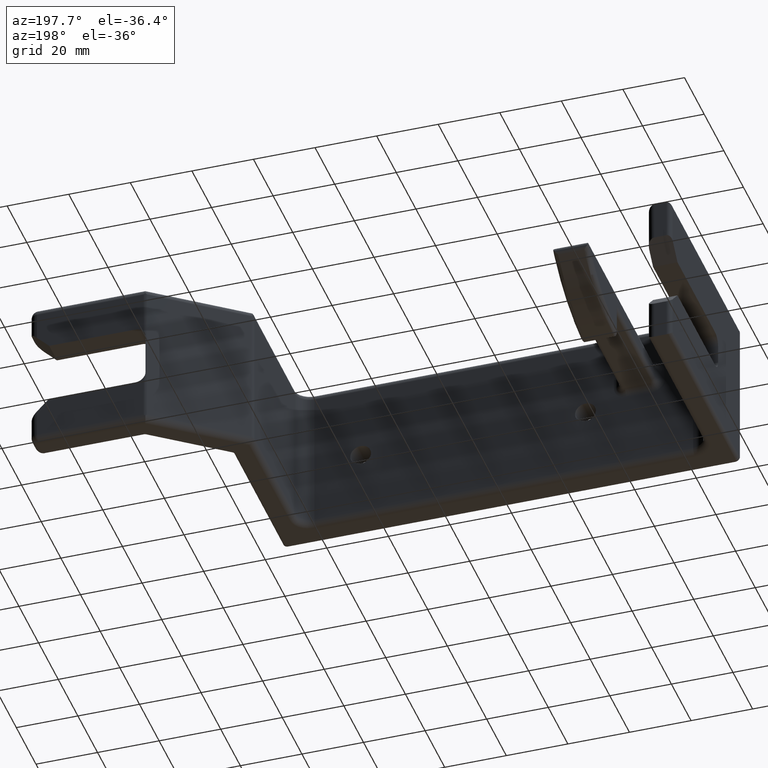
[diagram: clean part render]
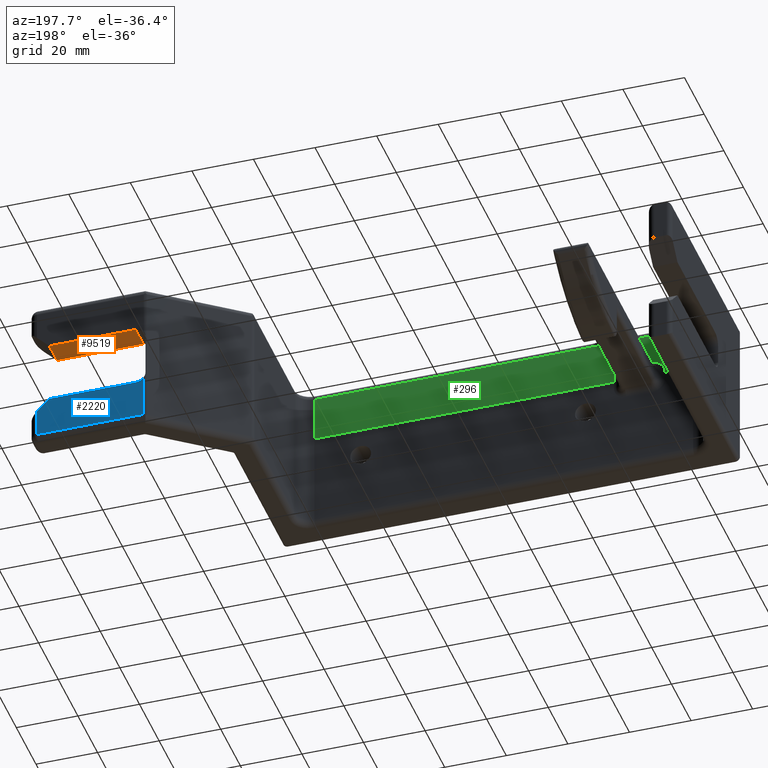
[diagram: same view with three faces highlighted in distinct colors, each labeled with its STEP entity id]
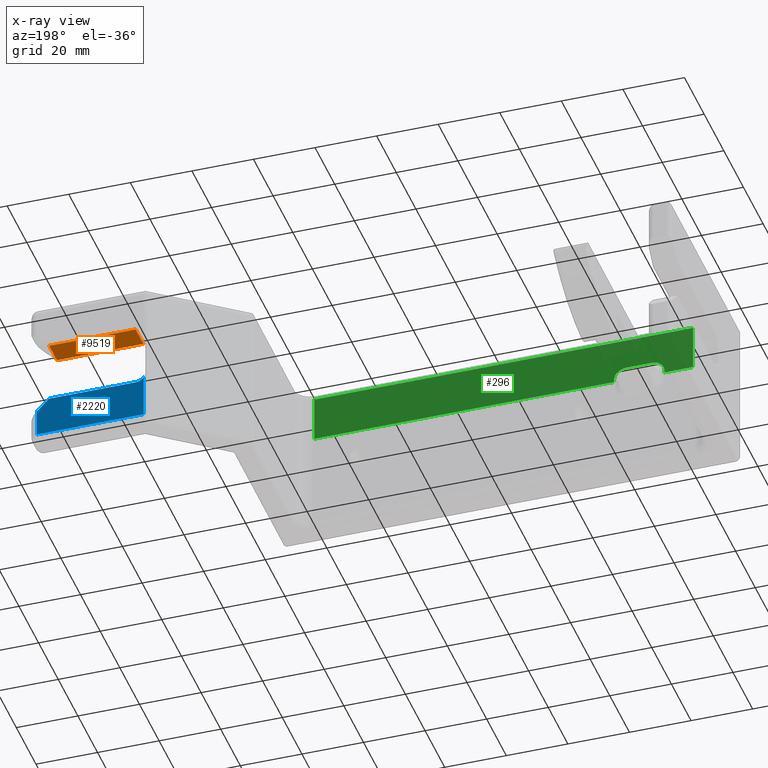
[diagram: x-ray of the same camera — body ghosted, the three highlighted faces saturated]
A machine part, auxiliary view with three faces highlighted in distinct colors.
The next image is the same camera in x-ray (body ghosted, the three faces saturated) — at least one of them is partly hidden behind the body in this view.
Their STEP definitions:

[orange] entity #9519 — the highlighted planar face has unit normal (0, 0, 1).
#2 = EDGE_LOOP ( 'NONE', ( #911, #9292, #3724, #5590, #2513 ) ) ;
#188 = VECTOR ( 'NONE', #8344, 39.37007874015748100 ) ;
#192 = CARTESIAN_POINT ( 'NONE',  ( 4.955000000000000100, 2.687500000000000400, 0.3999999999999999700 ) ) ;
#325 = CARTESIAN_POINT ( 'NONE',  ( 3.850955183131433900, 2.625000000000000000, 0.4000000000000000800 ) ) ;
#367 = EDGE_CURVE ( 'NONE', #1565, #2681, #9721, .T. ) ;
#395 = DIRECTION ( 'NONE',  ( -0.0000000000000000000, 1.000000000000000000, -0.0000000000000000000 ) ) ;
#594 = VECTOR ( 'NONE', #395, 39.37007874015748100 ) ;
#911 = ORIENTED_EDGE ( 'NONE', *, *, #1427, .T. ) ;
#1026 = PLANE ( 'NONE',  #2176 ) ;
#1124 = DIRECTION ( 'NONE',  ( 1.000000000000000000, 0.0000000000000000000, 0.0000000000000000000 ) ) ;
#1323 = LINE ( 'NONE', #8698, #3157 ) ;
#1427 = EDGE_CURVE ( 'NONE', #1899, #3421, #5433, .T. ) ;
#1565 = VERTEX_POINT ( 'NONE', #7103 ) ;
#1899 = VERTEX_POINT ( 'NONE', #8424 ) ;
#2117 = CARTESIAN_POINT ( 'NONE',  ( 4.955000000000000100, 2.540000000000000000, 0.4000000000000000200 ) ) ;
#2176 = AXIS2_PLACEMENT_3D ( 'NONE', #8703, #9582, #4942 ) ;
#2187 = LINE ( 'NONE', #5073, #594 ) ;
#2513 = ORIENTED_EDGE ( 'NONE', *, *, #4479, .T. ) ;
#2681 = VERTEX_POINT ( 'NONE', #3457 ) ;
#3157 = VECTOR ( 'NONE', #7125, 39.37007874015748100 ) ;
#3421 = VERTEX_POINT ( 'NONE', #5189 ) ;
#3457 = CARTESIAN_POINT ( 'NONE',  ( 3.850224084342833900, 2.687495723810204400, 0.4000000000000000800 ) ) ;
#3540 = EDGE_CURVE ( 'NONE', #1565, #7768, #1323, .T. ) ;
#3724 = ORIENTED_EDGE ( 'NONE', *, *, #3540, .F. ) ;
#4479 = EDGE_CURVE ( 'NONE', #2681, #1899, #2187, .T. ) ;
#4942 = DIRECTION ( 'NONE',  ( 1.000000000000000000, 0.0000000000000000000, -5.041143635069558200E-017 ) ) ;
#5073 = CARTESIAN_POINT ( 'NONE',  ( 3.850224084342833900, 2.540000000000000000, 0.4000000000000000800 ) ) ;
#5189 = CARTESIAN_POINT ( 'NONE',  ( 4.955000000000000100, 3.000000000000000400, 0.4000000000000000200 ) ) ;
#5433 = LINE ( 'NONE', #9846, #9309 ) ;
#5590 = ORIENTED_EDGE ( 'NONE', *, *, #367, .T. ) ;
#5771 = DIRECTION ( 'NONE',  ( 5.041143635069557600E-017, 0.0000000000000000000, 1.000000000000000000 ) ) ;
#5975 = DIRECTION ( 'NONE',  ( 1.000000000000000000, -0.0000000000000000000, -5.041143635069558200E-017 ) ) ;
#7103 = CARTESIAN_POINT ( 'NONE',  ( 3.850955183131433900, 2.687500000000000400, 0.4000000000000000800 ) ) ;
#7125 = DIRECTION ( 'NONE',  ( 1.000000000000000000, 0.0000000000000000000, -5.041143635069558200E-017 ) ) ;
#7768 = VERTEX_POINT ( 'NONE', #192 ) ;
#8042 = EDGE_CURVE ( 'NONE', #3421, #7768, #8491, .T. ) ;
#8344 = DIRECTION ( 'NONE',  ( 0.0000000000000000000, -1.000000000000000000, 0.0000000000000000000 ) ) ;
#8424 = CARTESIAN_POINT ( 'NONE',  ( 3.850224084342833900, 3.000000000000000400, 0.4000000000000000800 ) ) ;
#8485 = AXIS2_PLACEMENT_3D ( 'NONE', #325, #5771, #1124 ) ;
#8491 = LINE ( 'NONE', #2117, #188 ) ;
#8628 = FACE_OUTER_BOUND ( 'NONE', #2, .T. ) ;
#8698 = CARTESIAN_POINT ( 'NONE',  ( 3.830000000000001000, 2.687500000000000400, 0.4000000000000000800 ) ) ;
#8703 = CARTESIAN_POINT ( 'NONE',  ( 5.205000000000001000, 2.540000000000000000, 0.4000000000000000200 ) ) ;
#9292 = ORIENTED_EDGE ( 'NONE', *, *, #8042, .T. ) ;
#9309 = VECTOR ( 'NONE', #5975, 39.37007874015748100 ) ;
#9519 = ADVANCED_FACE ( 'NONE', ( #8628 ), #1026, .F. ) ;
#9582 = DIRECTION ( 'NONE',  ( 5.041143635069558200E-017, 0.0000000000000000000, 1.000000000000000000 ) ) ;
#9721 = CIRCLE ( 'NONE', #8485, 0.06250000000000022200 ) ;
#9846 = CARTESIAN_POINT ( 'NONE',  ( 5.205000000000001000, 3.000000000000000400, 0.4000000000000000200 ) ) ;

[blue] entity #2220 — the highlighted planar face has unit normal (0, -1, 0).
#164 = LINE ( 'NONE', #6719, #4079 ) ;
#258 = DIRECTION ( 'NONE',  ( -1.000000000000000000, 0.0000000000000000000, -5.041143635069558200E-017 ) ) ;
#279 = CARTESIAN_POINT ( 'NONE',  ( 5.111250000000001000, 3.000000000000000400, -0.9062499999999998900 ) ) ;
#477 = LINE ( 'NONE', #8047, #8510 ) ;
#593 = LINE ( 'NONE', #5703, #6065 ) ;
#1066 = DIRECTION ( 'NONE',  ( 0.7071067811865459100, -0.0000000000000000000, -0.7071067811865491300 ) ) ;
#1555 = CIRCLE ( 'NONE', #7667, 0.1249999999999999200 ) ;
#1621 = LINE ( 'NONE', #6948, #7339 ) ;
#1986 = AXIS2_PLACEMENT_3D ( 'NONE', #5004, #3466, #8903 ) ;
#2220 = ADVANCED_FACE ( 'NONE', ( #6507 ), #8138, .F. ) ;
#2321 = VECTOR ( 'NONE', #9219, 39.37007874015748100 ) ;
#2629 = VERTEX_POINT ( 'NONE', #279 ) ;
#3122 = VERTEX_POINT ( 'NONE', #8595 ) ;
#3321 = CARTESIAN_POINT ( 'NONE',  ( 3.850224084342833900, 3.000000000000000400, -0.2750000000000001900 ) ) ;
#3466 = DIRECTION ( 'NONE',  ( 0.0000000000000000000, -1.000000000000000000, 0.0000000000000000000 ) ) ;
#3597 = CARTESIAN_POINT ( 'NONE',  ( 3.850224084342833900, 3.000000000000000400, -0.4000000000000000800 ) ) ;
#3707 = EDGE_CURVE ( 'NONE', #4564, #3885, #593, .T. ) ;
#3803 = CARTESIAN_POINT ( 'NONE',  ( 5.111250000000001000, 3.000000000000000400, 1.000000000000000000 ) ) ;
#3885 = VERTEX_POINT ( 'NONE', #3597 ) ;
#4079 = VECTOR ( 'NONE', #7512, 39.37007874015748100 ) ;
#4122 = DIRECTION ( 'NONE',  ( 0.0000000000000000000, 0.0000000000000000000, 1.000000000000000000 ) ) ;
#4187 = EDGE_CURVE ( 'NONE', #4564, #7170, #477, .T. ) ;
#4330 = EDGE_CURVE ( 'NONE', #3885, #5538, #1555, .T. ) ;
#4564 = VERTEX_POINT ( 'NONE', #5146 ) ;
#5004 = CARTESIAN_POINT ( 'NONE',  ( 3.725224084342834400, 3.000000000000000400, 1.000000000000000000 ) ) ;
#5146 = CARTESIAN_POINT ( 'NONE',  ( 4.955000000000001800, 3.000000000000000400, -0.4000000000000000200 ) ) ;
#5526 = EDGE_CURVE ( 'NONE', #2629, #3122, #164, .T. ) ;
#5538 = VERTEX_POINT ( 'NONE', #9066 ) ;
#5703 = CARTESIAN_POINT ( 'NONE',  ( 5.205000000000001000, 3.000000000000000400, -0.4000000000000000200 ) ) ;
#5995 = EDGE_CURVE ( 'NONE', #3122, #5538, #1621, .T. ) ;
#6065 = VECTOR ( 'NONE', #258, 39.37007874015748100 ) ;
#6507 = FACE_OUTER_BOUND ( 'NONE', #7324, .T. ) ;
#6719 = CARTESIAN_POINT ( 'NONE',  ( 3.725224084342834400, 3.000000000000000400, -0.9062499999999998900 ) ) ;
#6836 = ORIENTED_EDGE ( 'NONE', *, *, #5526, .T. ) ;
#6948 = CARTESIAN_POINT ( 'NONE',  ( 3.746179267474267300, 3.000000000000000400, 1.000000000000000000 ) ) ;
#7170 = VERTEX_POINT ( 'NONE', #7601 ) ;
#7324 = EDGE_LOOP ( 'NONE', ( #6836, #9532, #7889, #9764, #8811, #9473 ) ) ;
#7339 = VECTOR ( 'NONE', #7751, 39.37007874015748100 ) ;
#7512 = DIRECTION ( 'NONE',  ( -1.000000000000000000, 0.0000000000000000000, 0.0000000000000000000 ) ) ;
#7601 = CARTESIAN_POINT ( 'NONE',  ( 5.111250000000001000, 3.000000000000000400, -0.5562499999999994700 ) ) ;
#7667 = AXIS2_PLACEMENT_3D ( 'NONE', #3321, #8766, #4122 ) ;
#7751 = DIRECTION ( 'NONE',  ( -0.0000000000000000000, -0.0000000000000000000, 1.000000000000000000 ) ) ;
#7889 = ORIENTED_EDGE ( 'NONE', *, *, #4330, .F. ) ;
#8047 = CARTESIAN_POINT ( 'NONE',  ( 4.955000000000001800, 3.000000000000000400, -0.4000000000000000200 ) ) ;
#8138 = PLANE ( 'NONE',  #1986 ) ;
#8276 = LINE ( 'NONE', #3803, #2321 ) ;
#8510 = VECTOR ( 'NONE', #1066, 39.37007874015748100 ) ;
#8595 = CARTESIAN_POINT ( 'NONE',  ( 3.746179267474267300, 3.000000000000000400, -0.9062499999999998900 ) ) ;
#8766 = DIRECTION ( 'NONE',  ( 0.0000000000000000000, 1.000000000000000000, 0.0000000000000000000 ) ) ;
#8811 = ORIENTED_EDGE ( 'NONE', *, *, #4187, .T. ) ;
#8903 = DIRECTION ( 'NONE',  ( 0.0000000000000000000, -0.0000000000000000000, -1.000000000000000000 ) ) ;
#9066 = CARTESIAN_POINT ( 'NONE',  ( 3.746179267474267300, 3.000000000000000400, -0.3442796945921847200 ) ) ;
#9219 = DIRECTION ( 'NONE',  ( 0.0000000000000000000, 0.0000000000000000000, -1.000000000000000000 ) ) ;
#9473 = ORIENTED_EDGE ( 'NONE', *, *, #9992, .T. ) ;
#9532 = ORIENTED_EDGE ( 'NONE', *, *, #5995, .T. ) ;
#9764 = ORIENTED_EDGE ( 'NONE', *, *, #3707, .F. ) ;
#9992 = EDGE_CURVE ( 'NONE', #7170, #2629, #8276, .T. ) ;

[green] entity #296 — the highlighted planar face has unit normal (0, -1, 0).
#71 = ORIENTED_EDGE ( 'NONE', *, *, #5994, .T. ) ;
#135 = CARTESIAN_POINT ( 'NONE',  ( -1.565000000000000200, 0.3125000000000000000, 0.3375000000000000200 ) ) ;
#147 = CARTESIAN_POINT ( 'NONE',  ( 2.419999999999999900, 0.3125000000000000000, 0.9062499999999998900 ) ) ;
#184 = EDGE_CURVE ( 'NONE', #2841, #3946, #7039, .T. ) ;
#296 = ADVANCED_FACE ( 'NONE', ( #6313 ), #1909, .F. ) ;
#603 = LINE ( 'NONE', #6489, #8622 ) ;
#716 = CARTESIAN_POINT ( 'NONE',  ( 2.419999999999999900, 0.3125000000000000000, 0.3125000000000000000 ) ) ;
#766 = EDGE_CURVE ( 'NONE', #3946, #1551, #603, .T. ) ;
#940 = DIRECTION ( 'NONE',  ( 0.0000000000000000000, 0.0000000000000000000, -1.000000000000000000 ) ) ;
#1145 = CARTESIAN_POINT ( 'NONE',  ( -1.408750000000000200, 0.3125000000000000000, 0.3375000000000000200 ) ) ;
#1187 = ORIENTED_EDGE ( 'NONE', *, *, #184, .T. ) ;
#1446 = LINE ( 'NONE', #7814, #7403 ) ;
#1503 = DIRECTION ( 'NONE',  ( -1.000000000000000000, 0.0000000000000000000, 0.0000000000000000000 ) ) ;
#1551 = VERTEX_POINT ( 'NONE', #1674 ) ;
#1576 = CARTESIAN_POINT ( 'NONE',  ( -2.056250000000000400, 0.3125000000000000000, 0.3375000000000000200 ) ) ;
#1674 = CARTESIAN_POINT ( 'NONE',  ( -2.419999999999999900, 0.3125000000000000000, 0.3125000000000000000 ) ) ;
#1909 = PLANE ( 'NONE',  #5479 ) ;
#2034 = DIRECTION ( 'NONE',  ( 0.0000000000000000000, 0.0000000000000000000, -1.000000000000000000 ) ) ;
#2402 = EDGE_CURVE ( 'NONE', #8839, #7503, #5307, .T. ) ;
#2715 = VERTEX_POINT ( 'NONE', #1145 ) ;
#2841 = VERTEX_POINT ( 'NONE', #1576 ) ;
#2858 = CARTESIAN_POINT ( 'NONE',  ( -1.900000000000000100, 0.3125000000000000000, 0.4937500000000000200 ) ) ;
#3089 = CARTESIAN_POINT ( 'NONE',  ( -2.056250000000000400, 0.3125000000000000000, 0.3125000000000000000 ) ) ;
#3104 = ORIENTED_EDGE ( 'NONE', *, *, #766, .T. ) ;
#3402 = DIRECTION ( 'NONE',  ( 1.000000000000000000, -0.0000000000000000000, -0.0000000000000000000 ) ) ;
#3404 = DIRECTION ( 'NONE',  ( -1.000000000000000000, 0.0000000000000000000, 0.0000000000000000000 ) ) ;
#3460 = LINE ( 'NONE', #5387, #6022 ) ;
#3551 = CARTESIAN_POINT ( 'NONE',  ( -1.900000000000000100, 0.3125000000000000000, 0.3375000000000000200 ) ) ;
#3718 = EDGE_CURVE ( 'NONE', #9814, #5389, #9942, .T. ) ;
#3818 = ORIENTED_EDGE ( 'NONE', *, *, #6905, .T. ) ;
#3946 = VERTEX_POINT ( 'NONE', #3089 ) ;
#3968 = CIRCLE ( 'NONE', #8750, 0.1562500000000000000 ) ;
#4090 = EDGE_CURVE ( 'NONE', #1551, #9814, #1446, .T. ) ;
#4103 = DIRECTION ( 'NONE',  ( -1.000000000000000000, 0.0000000000000000000, 0.0000000000000000000 ) ) ;
#4176 = DIRECTION ( 'NONE',  ( -0.0000000000000000000, -0.0000000000000000000, 1.000000000000000000 ) ) ;
#4248 = VECTOR ( 'NONE', #3402, 39.37007874015748100 ) ;
#4281 = CARTESIAN_POINT ( 'NONE',  ( -2.607499999999999900, 0.3125000000000000000, 1.000000000000000000 ) ) ;
#4325 = CARTESIAN_POINT ( 'NONE',  ( -1.565000000000000200, 0.3125000000000000000, 0.4937500000000000200 ) ) ;
#4342 = DIRECTION ( 'NONE',  ( 0.0000000000000000000, 0.0000000000000000000, -1.000000000000000000 ) ) ;
#4490 = VERTEX_POINT ( 'NONE', #9716 ) ;
#4955 = CARTESIAN_POINT ( 'NONE',  ( -1.408750000000000200, 0.3125000000000000000, 1.000000000000000000 ) ) ;
#5051 = DIRECTION ( 'NONE',  ( 0.0000000000000000000, -0.0000000000000000000, -1.000000000000000000 ) ) ;
#5097 = ORIENTED_EDGE ( 'NONE', *, *, #8558, .T. ) ;
#5248 = EDGE_CURVE ( 'NONE', #7503, #2841, #3968, .T. ) ;
#5307 = LINE ( 'NONE', #7981, #8689 ) ;
#5387 = CARTESIAN_POINT ( 'NONE',  ( -2.607499999999999900, 0.3125000000000000000, 0.3125000000000000000 ) ) ;
#5389 = VERTEX_POINT ( 'NONE', #147 ) ;
#5479 = AXIS2_PLACEMENT_3D ( 'NONE', #4281, #9694, #5051 ) ;
#5484 = DIRECTION ( 'NONE',  ( -0.0000000000000000000, -0.0000000000000000000, 1.000000000000000000 ) ) ;
#5589 = DIRECTION ( 'NONE',  ( 0.0000000000000000000, -1.000000000000000000, 0.0000000000000000000 ) ) ;
#5648 = VERTEX_POINT ( 'NONE', #716 ) ;
#5994 = EDGE_CURVE ( 'NONE', #5648, #4490, #3460, .T. ) ;
#6006 = ORIENTED_EDGE ( 'NONE', *, *, #4090, .T. ) ;
#6022 = VECTOR ( 'NONE', #1503, 39.37007874015748100 ) ;
#6120 = EDGE_CURVE ( 'NONE', #2715, #8839, #8457, .T. ) ;
#6313 = FACE_OUTER_BOUND ( 'NONE', #9821, .T. ) ;
#6489 = CARTESIAN_POINT ( 'NONE',  ( -2.607499999999999900, 0.3125000000000000000, 0.3125000000000000000 ) ) ;
#6905 = EDGE_CURVE ( 'NONE', #4490, #2715, #9997, .T. ) ;
#7006 = ORIENTED_EDGE ( 'NONE', *, *, #6120, .T. ) ;
#7039 = LINE ( 'NONE', #8468, #8874 ) ;
#7403 = VECTOR ( 'NONE', #5484, 39.37007874015748100 ) ;
#7503 = VERTEX_POINT ( 'NONE', #2858 ) ;
#7668 = ORIENTED_EDGE ( 'NONE', *, *, #2402, .T. ) ;
#7814 = CARTESIAN_POINT ( 'NONE',  ( -2.419999999999999900, 0.3125000000000000000, 1.000000000000000000 ) ) ;
#7955 = VECTOR ( 'NONE', #4176, 39.37007874015748100 ) ;
#7981 = CARTESIAN_POINT ( 'NONE',  ( -1.900000000000000100, 0.3125000000000000000, 0.4937500000000000200 ) ) ;
#8269 = CARTESIAN_POINT ( 'NONE',  ( 2.419999999999999900, 0.3125000000000000000, -1.000000000000000000 ) ) ;
#8457 = CIRCLE ( 'NONE', #9502, 0.1562500000000000000 ) ;
#8468 = CARTESIAN_POINT ( 'NONE',  ( -2.056250000000000400, 0.3125000000000000000, 0.2124999999999999900 ) ) ;
#8558 = EDGE_CURVE ( 'NONE', #5389, #5648, #9423, .T. ) ;
#8622 = VECTOR ( 'NONE', #3404, 39.37007874015748100 ) ;
#8689 = VECTOR ( 'NONE', #4103, 39.37007874015748100 ) ;
#8750 = AXIS2_PLACEMENT_3D ( 'NONE', #3551, #8977, #4342 ) ;
#8774 = CARTESIAN_POINT ( 'NONE',  ( -2.419999999999999900, 0.3125000000000000000, 0.9062499999999998900 ) ) ;
#8839 = VERTEX_POINT ( 'NONE', #4325 ) ;
#8841 = CARTESIAN_POINT ( 'NONE',  ( 2.419999999999999900, 0.3125000000000000000, 0.9062499999999998900 ) ) ;
#8874 = VECTOR ( 'NONE', #9237, 39.37007874015748100 ) ;
#8977 = DIRECTION ( 'NONE',  ( 0.0000000000000000000, -1.000000000000000000, 0.0000000000000000000 ) ) ;
#9200 = VECTOR ( 'NONE', #2034, 39.37007874015748100 ) ;
#9237 = DIRECTION ( 'NONE',  ( 0.0000000000000000000, 0.0000000000000000000, -1.000000000000000000 ) ) ;
#9386 = ORIENTED_EDGE ( 'NONE', *, *, #5248, .T. ) ;
#9423 = LINE ( 'NONE', #8269, #9200 ) ;
#9502 = AXIS2_PLACEMENT_3D ( 'NONE', #135, #5589, #940 ) ;
#9635 = ORIENTED_EDGE ( 'NONE', *, *, #3718, .T. ) ;
#9694 = DIRECTION ( 'NONE',  ( 0.0000000000000000000, -1.000000000000000000, 0.0000000000000000000 ) ) ;
#9716 = CARTESIAN_POINT ( 'NONE',  ( -1.408750000000000200, 0.3125000000000000000, 0.3125000000000000000 ) ) ;
#9814 = VERTEX_POINT ( 'NONE', #8774 ) ;
#9821 = EDGE_LOOP ( 'NONE', ( #5097, #71, #3818, #7006, #7668, #9386, #1187, #3104, #6006, #9635 ) ) ;
#9942 = LINE ( 'NONE', #8841, #4248 ) ;
#9997 = LINE ( 'NONE', #4955, #7955 ) ;